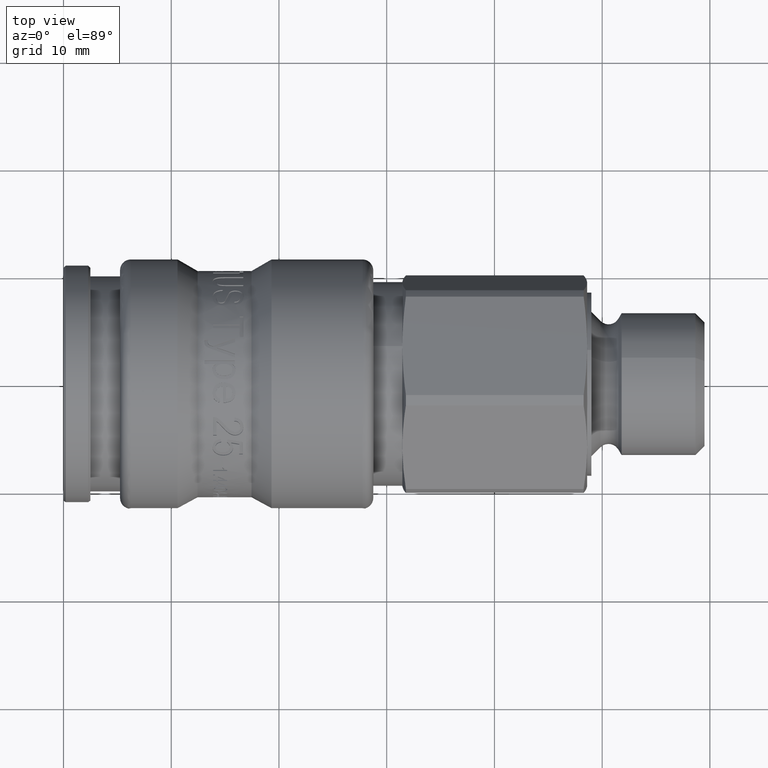
[diagram: clean part render]
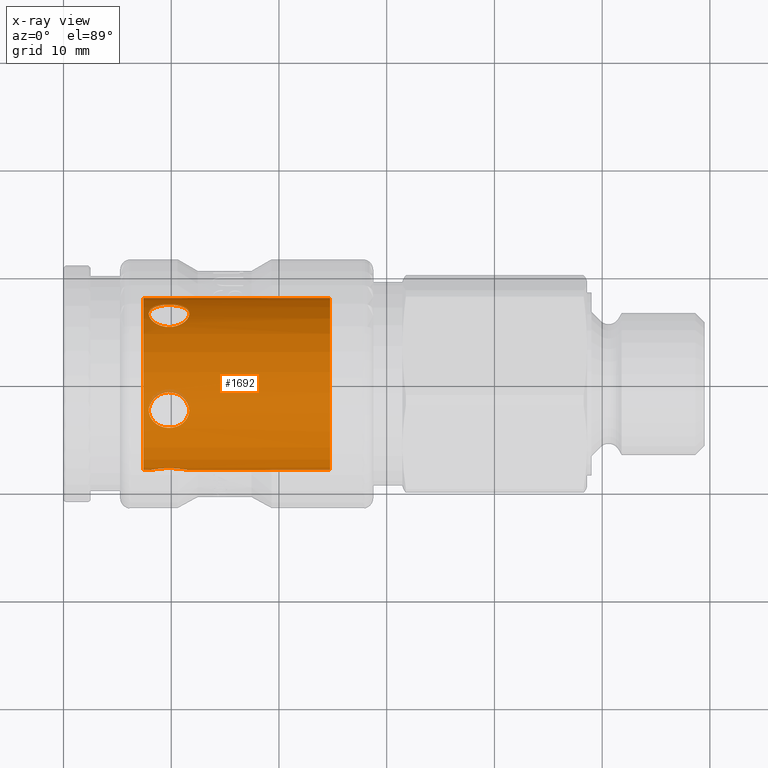
[diagram: x-ray — body ghosted, one internal face saturated and labeled with its STEP entity id]
A machine part, top view, then the same camera in x-ray: the body is ghosted and one INTERNAL B-rep face — a face not visible from any outside direction — is saturated and labeled: STEP entity #1692.
In plain terms, the highlighted cylindrical surface (bore or boss wall) has radius 8 mm, axis along (1, 0, 0).
Its self-contained STEP definition (entity closure, byte-faithful):
#1037=CARTESIAN_POINT('',(24.750000000000018,2.862820536596101,7.470224800850614));
#1038=VERTEX_POINT('',#1037);
#1039=CARTESIAN_POINT('',(24.750000000000021,0.0,0.0));
#1040=DIRECTION('',(-1.0,0.0,0.0));
#1041=DIRECTION('',(0.0,1.0,0.0));
#1042=AXIS2_PLACEMENT_3D('',#1039,#1040,#1041);
#1043=CIRCLE('',#1042,8.0);
#1044=EDGE_CURVE('',#1038,#1038,#1043,.T.);
#1242=CARTESIAN_POINT('',(7.907707855833962,-2.472135954999579,7.608452130361231));
#1243=VERTEX_POINT('',#1242);
#1244=CARTESIAN_POINT('',(11.692292144166041,-2.472135954999579,7.608452130361231));
#1245=VERTEX_POINT('',#1244);
#1246=CARTESIAN_POINT('',(7.907707855833962,-2.472135954999578,7.608452130361229));
#1247=CARTESIAN_POINT('',(7.907707855833962,-2.246160683258776,7.6818759470114));
#1248=CARTESIAN_POINT('',(7.956174254062871,-2.002371410237687,7.748836300970494));
#1249=CARTESIAN_POINT('',(8.151299058588551,-1.549396835035074,7.851963112260614));
#1250=CARTESIAN_POINT('',(8.297897496624692,-1.340317419983883,7.888707288715832));
#1251=CARTESIAN_POINT('',(8.633969101640778,-1.008762223908913,7.937910321553241));
#1252=CARTESIAN_POINT('',(8.84597209310374,-0.863704920792865,7.95383228236084));
#1253=CARTESIAN_POINT('',(9.310429020530567,-0.670339928805082,7.972457505264603));
#1254=CARTESIAN_POINT('',(9.562953105394298,-0.622259272924391,7.975762872431679));
#1255=CARTESIAN_POINT('',(10.037046894605703,-0.622259272924391,7.975762872431679));
#1256=CARTESIAN_POINT('',(10.289570979469435,-0.670339928805081,7.972457505264603));
#1257=CARTESIAN_POINT('',(10.754027906896262,-0.863704920792864,7.95383228236084));
#1258=CARTESIAN_POINT('',(10.966030898359222,-1.008762223908913,7.937910321553241));
#1259=CARTESIAN_POINT('',(11.302102503375311,-1.340317419983883,7.888707288715832));
#1260=CARTESIAN_POINT('',(11.448700941411454,-1.549396835035074,7.851963112260614));
#1261=CARTESIAN_POINT('',(11.643825745937136,-2.002371410237687,7.748836300970494));
#1262=CARTESIAN_POINT('',(11.692292144166043,-2.246160683258775,7.6818759470114));
#1263=CARTESIAN_POINT('',(11.692292144166043,-2.472135954999577,7.608452130361229));
#1264=B_SPLINE_CURVE_WITH_KNOTS('',3,(#1246,#1247,#1248,#1249,#1250,#1251,#1252,#1253,#1254,#1255,#1256,#1257,#1258,#1259,#1260,#1261,#1262,#1263),.UNSPECIFIED.,.F.,.U.,(4,2,2,2,2,2,2,2,4),(0.28479081387188,0.35607215242611,0.427353490980339,0.49846755936205,0.569581627743761,0.640695696125472,0.711809764507182,0.783091103061412,0.854372441615641),.UNSPECIFIED.);
#1265=EDGE_CURVE('',#1243,#1245,#1264,.T.);
#1267=CARTESIAN_POINT('',(11.692292144166043,-2.472135954999578,7.608452130361229));
#1268=CARTESIAN_POINT('',(11.692292144166043,-2.698111226740381,7.535028313711059));
#1269=CARTESIAN_POINT('',(11.643825745937136,-2.934699200206195,7.445904638664431));
#1270=CARTESIAN_POINT('',(11.448700941411454,-3.361779748357164,7.263084206606294));
#1271=CARTESIAN_POINT('',(11.302102503375311,-3.552526233335558,7.169917073077848));
#1272=CARTESIAN_POINT('',(10.966030898359222,-3.849680838603419,7.014839908244293));
#1273=CARTESIAN_POINT('',(10.754027906896262,-3.976393355732786,6.942458501612481));
#1274=CARTESIAN_POINT('',(10.289570979469438,-4.14377655171157,6.843869532865576));
#1275=CARTESIAN_POINT('',(10.037046894605705,-4.184617465493961,6.818282530629171));
#1276=CARTESIAN_POINT('',(9.800000000000003,-4.184617465493961,6.818282530629171));
#1277=CARTESIAN_POINT('',(9.562953105394298,-4.184617465493961,6.818282530629171));
#1278=CARTESIAN_POINT('',(9.310429020530568,-4.143776551711569,6.843869532865576));
#1279=CARTESIAN_POINT('',(8.845972093103745,-3.976393355732786,6.942458501612481));
#1280=CARTESIAN_POINT('',(8.63396910164078,-3.849680838603419,7.014839908244293));
#1281=CARTESIAN_POINT('',(8.297897496624692,-3.552526233335558,7.169917073077848));
#1282=CARTESIAN_POINT('',(8.151299058588551,-3.361779748357163,7.263084206606293));
#1283=CARTESIAN_POINT('',(7.956174254062871,-2.934699200206195,7.44590463866443));
#1284=CARTESIAN_POINT('',(7.907707855833963,-2.69811122674038,7.535028313711059));
#1285=CARTESIAN_POINT('',(7.907707855833963,-2.472135954999578,7.608452130361229));
#1286=B_SPLINE_CURVE_WITH_KNOTS('',3,(#1267,#1268,#1269,#1270,#1271,#1272,#1273,#1274,#1275,#1276,#1277,#1278,#1279,#1280,#1281,#1282,#1283,#1284,#1285),.UNSPECIFIED.,.F.,.U.,(4,2,2,2,3,2,2,2,4),(0.854372441615641,0.92565378016987,0.996935118724099,1.06804918710581,1.139163255487521,1.210277323869232,1.281391392250943,1.352672730805172,1.423954069359401),.UNSPECIFIED.);
#1287=EDGE_CURVE('',#1245,#1243,#1286,.T.);
#1300=CARTESIAN_POINT('',(7.907707855833962,6.472135954999581,4.702282018339786));
#1301=VERTEX_POINT('',#1300);
#1302=CARTESIAN_POINT('',(11.692292144166041,6.472135954999581,4.702282018339786));
#1303=VERTEX_POINT('',#1302);
#1304=CARTESIAN_POINT('',(7.907707855833963,6.472135954999581,4.702282018339784));
#1305=CARTESIAN_POINT('',(7.907707855833963,6.611796353552391,4.510055970765899));
#1306=CARTESIAN_POINT('',(7.95617425406287,6.750814462928446,4.298890481379057));
#1307=CARTESIAN_POINT('',(8.151299058588551,6.988870730568037,3.899953997180928));
#1308=CARTESIAN_POINT('',(8.297897496624692,7.088425611446461,3.712462232042288));
#1309=CARTESIAN_POINT('',(8.633969101640778,7.237676666608445,3.412339075625218));
#1310=CARTESIAN_POINT('',(8.845972093103741,7.297644523007767,3.279301538733819));
#1311=CARTESIAN_POINT('',(9.310429020530567,7.375111231259242,3.101156013481762));
#1312=CARTESIAN_POINT('',(9.562953105394298,7.393112562010064,3.056450007025963));
#1313=CARTESIAN_POINT('',(10.037046894605703,7.393112562010064,3.056450007025963));
#1314=CARTESIAN_POINT('',(10.289570979469435,7.375111231259242,3.101156013481761));
#1315=CARTESIAN_POINT('',(10.754027906896262,7.297644523007768,3.279301538733818));
#1316=CARTESIAN_POINT('',(10.966030898359222,7.237676666608447,3.412339075625218));
#1317=CARTESIAN_POINT('',(11.302102503375311,7.088425611446461,3.712462232042287));
#1318=CARTESIAN_POINT('',(11.448700941411454,6.988870730568037,3.899953997180928));
#1319=CARTESIAN_POINT('',(11.643825745937136,6.750814462928448,4.298890481379056));
#1320=CARTESIAN_POINT('',(11.692292144166043,6.611796353552391,4.510055970765898));
#1321=CARTESIAN_POINT('',(11.692292144166043,6.472135954999581,4.702282018339784));
#1322=B_SPLINE_CURVE_WITH_KNOTS('',3,(#1304,#1305,#1306,#1307,#1308,#1309,#1310,#1311,#1312,#1313,#1314,#1315,#1316,#1317,#1318,#1319,#1320,#1321),.UNSPECIFIED.,.F.,.U.,(4,2,2,2,2,2,2,2,4),(0.28479081387188,0.35607215242611,0.427353490980339,0.49846755936205,0.569581627743761,0.640695696125472,0.711809764507182,0.783091103061412,0.854372441615641),.UNSPECIFIED.);
#1323=EDGE_CURVE('',#1301,#1303,#1322,.T.);
#1325=CARTESIAN_POINT('',(11.692292144166043,6.472135954999581,4.702282018339785));
#1326=CARTESIAN_POINT('',(11.692292144166043,6.33247555644677,4.894508065913671));
#1327=CARTESIAN_POINT('',(11.643825745937136,6.174604200071836,5.091975869564839));
#1328=CARTESIAN_POINT('',(11.448700941411454,5.868756489505431,5.441658987441789));
#1329=CARTESIAN_POINT('',(11.302102503375311,5.721205374583054,5.594279447363398));
#1330=CARTESIAN_POINT('',(10.966030898359225,5.481892403454978,5.828968791677458));
#1331=CARTESIAN_POINT('',(10.75402790689626,5.373897273826181,5.927112472063509));
#1332=CARTESIAN_POINT('',(10.289570979469438,5.228409340534381,6.055837684516745));
#1333=CARTESIAN_POINT('',(10.037046894605705,5.191454118900428,6.086772883174778));
#1334=CARTESIAN_POINT('',(9.800000000000003,5.191454118900428,6.086772883174778));
#1335=CARTESIAN_POINT('',(9.562953105394298,5.191454118900428,6.086772883174778));
#1336=CARTESIAN_POINT('',(9.310429020530565,5.228409340534381,6.055837684516745));
#1337=CARTESIAN_POINT('',(8.84597209310374,5.373897273826182,5.927112472063508));
#1338=CARTESIAN_POINT('',(8.633969101640776,5.481892403454976,5.828968791677458));
#1339=CARTESIAN_POINT('',(8.297897496624691,5.721205374583054,5.594279447363398));
#1340=CARTESIAN_POINT('',(8.151299058588551,5.868756489505432,5.441658987441789));
#1341=CARTESIAN_POINT('',(7.956174254062871,6.174604200071837,5.091975869564839));
#1342=CARTESIAN_POINT('',(7.907707855833963,6.33247555644677,4.89450806591367));
#1343=CARTESIAN_POINT('',(7.907707855833963,6.472135954999581,4.702282018339784));
#1344=B_SPLINE_CURVE_WITH_KNOTS('',3,(#1325,#1326,#1327,#1328,#1329,#1330,#1331,#1332,#1333,#1334,#1335,#1336,#1337,#1338,#1339,#1340,#1341,#1342,#1343),.UNSPECIFIED.,.F.,.U.,(4,2,2,2,3,2,2,2,4),(0.854372441615641,0.92565378016987,0.996935118724099,1.06804918710581,1.139163255487521,1.210277323869232,1.281391392250943,1.352672730805172,1.423954069359402),.UNSPECIFIED.);
#1345=EDGE_CURVE('',#1303,#1301,#1344,.T.);
#1358=CARTESIAN_POINT('',(7.907707855833962,6.472135954999581,-4.702282018339787));
#1359=VERTEX_POINT('',#1358);
#1360=CARTESIAN_POINT('',(11.692292144166041,6.472135954999581,-4.702282018339787));
#1361=VERTEX_POINT('',#1360);
#1362=CARTESIAN_POINT('',(7.907707855833963,6.472135954999581,-4.702282018339786));
#1363=CARTESIAN_POINT('',(7.907707855833963,6.332475556446772,-4.894508065913671));
#1364=CARTESIAN_POINT('',(7.95617425406287,6.174604200071833,-5.091975869564839));
#1365=CARTESIAN_POINT('',(8.151299058588551,5.868756489505429,-5.44165898744179));
#1366=CARTESIAN_POINT('',(8.297897496624692,5.721205374583052,-5.594279447363398));
#1367=CARTESIAN_POINT('',(8.633969101640778,5.481892403454975,-5.828968791677458));
#1368=CARTESIAN_POINT('',(8.84597209310374,5.373897273826179,-5.92711247206351));
#1369=CARTESIAN_POINT('',(9.310429020530567,5.22840934053438,-6.055837684516749));
#1370=CARTESIAN_POINT('',(9.562953105394298,5.191454118900428,-6.086772883174779));
#1371=CARTESIAN_POINT('',(10.037046894605703,5.191454118900428,-6.086772883174779));
#1372=CARTESIAN_POINT('',(10.289570979469435,5.228409340534379,-6.055837684516749));
#1373=CARTESIAN_POINT('',(10.754027906896262,5.373897273826178,-5.92711247206351));
#1374=CARTESIAN_POINT('',(10.966030898359227,5.481892403454975,-5.828968791677459));
#1375=CARTESIAN_POINT('',(11.302102503375311,5.721205374583052,-5.5942794473634));
#1376=CARTESIAN_POINT('',(11.448700941411454,5.86875648950543,-5.44165898744179));
#1377=CARTESIAN_POINT('',(11.643825745937136,6.174604200071835,-5.091975869564841));
#1378=CARTESIAN_POINT('',(11.692292144166043,6.33247555644677,-4.894508065913671));
#1379=CARTESIAN_POINT('',(11.692292144166043,6.47213595499958,-4.702282018339786));
#1380=B_SPLINE_CURVE_WITH_KNOTS('',3,(#1362,#1363,#1364,#1365,#1366,#1367,#1368,#1369,#1370,#1371,#1372,#1373,#1374,#1375,#1376,#1377,#1378,#1379),.UNSPECIFIED.,.F.,.U.,(4,2,2,2,2,2,2,2,4),(0.28479081387188,0.356072152426109,0.427353490980339,0.49846755936205,0.569581627743761,0.640695696125472,0.711809764507182,0.783091103061412,0.854372441615641),.UNSPECIFIED.);
#1381=EDGE_CURVE('',#1359,#1361,#1380,.T.);
#1383=CARTESIAN_POINT('',(11.692292144166043,6.47213595499958,-4.702282018339786));
#1384=CARTESIAN_POINT('',(11.692292144166043,6.611796353552388,-4.510055970765901));
#1385=CARTESIAN_POINT('',(11.643825745937136,6.750814462928446,-4.298890481379058));
#1386=CARTESIAN_POINT('',(11.448700941411454,6.988870730568037,-3.899953997180929));
#1387=CARTESIAN_POINT('',(11.302102503375309,7.088425611446461,-3.71246223204229));
#1388=CARTESIAN_POINT('',(10.966030898359222,7.237676666608445,-3.41233907562522));
#1389=CARTESIAN_POINT('',(10.754027906896262,7.297644523007768,-3.279301538733819));
#1390=CARTESIAN_POINT('',(10.289570979469438,7.375111231259242,-3.101156013481763));
#1391=CARTESIAN_POINT('',(10.037046894605705,7.393112562010065,-3.056450007025965));
#1392=CARTESIAN_POINT('',(9.800000000000003,7.393112562010064,-3.056450007025964));
#1393=CARTESIAN_POINT('',(9.562953105394298,7.393112562010064,-3.056450007025964));
#1394=CARTESIAN_POINT('',(9.310429020530567,7.375111231259242,-3.101156013481765));
#1395=CARTESIAN_POINT('',(8.845972093103743,7.297644523007767,-3.279301538733821));
#1396=CARTESIAN_POINT('',(8.63396910164078,7.237676666608445,-3.412339075625219));
#1397=CARTESIAN_POINT('',(8.297897496624692,7.088425611446461,-3.71246223204229));
#1398=CARTESIAN_POINT('',(8.151299058588551,6.988870730568037,-3.899953997180929));
#1399=CARTESIAN_POINT('',(7.956174254062871,6.750814462928446,-4.298890481379058));
#1400=CARTESIAN_POINT('',(7.907707855833962,6.611796353552387,-4.510055970765901));
#1401=CARTESIAN_POINT('',(7.907707855833962,6.472135954999578,-4.702282018339786));
#1402=B_SPLINE_CURVE_WITH_KNOTS('',3,(#1383,#1384,#1385,#1386,#1387,#1388,#1389,#1390,#1391,#1392,#1393,#1394,#1395,#1396,#1397,#1398,#1399,#1400,#1401),.UNSPECIFIED.,.F.,.U.,(4,2,2,2,3,2,2,2,4),(0.854372441615641,0.92565378016987,0.996935118724099,1.06804918710581,1.139163255487521,1.210277323869232,1.281391392250943,1.352672730805172,1.423954069359401),.UNSPECIFIED.);
#1403=EDGE_CURVE('',#1361,#1359,#1402,.T.);
#1416=CARTESIAN_POINT('',(7.907707855833962,-2.472135954999581,-7.608452130361229));
#1417=VERTEX_POINT('',#1416);
#1418=CARTESIAN_POINT('',(11.692292144166041,-2.472135954999581,-7.608452130361229));
#1419=VERTEX_POINT('',#1418);
#1420=CARTESIAN_POINT('',(7.907707855833963,-2.47213595499958,-7.608452130361229));
#1421=CARTESIAN_POINT('',(7.907707855833963,-2.698111226740382,-7.535028313711059));
#1422=CARTESIAN_POINT('',(7.956174254062871,-2.934699200206196,-7.445904638664429));
#1423=CARTESIAN_POINT('',(8.151299058588551,-3.361779748357164,-7.263084206606292));
#1424=CARTESIAN_POINT('',(8.297897496624692,-3.552526233335559,-7.169917073077848));
#1425=CARTESIAN_POINT('',(8.633969101640778,-3.84968083860342,-7.014839908244293));
#1426=CARTESIAN_POINT('',(8.845972093103741,-3.976393355732786,-6.942458501612481));
#1427=CARTESIAN_POINT('',(9.310429020530567,-4.143776551711571,-6.843869532865575));
#1428=CARTESIAN_POINT('',(9.562953105394298,-4.184617465493962,-6.818282530629169));
#1429=CARTESIAN_POINT('',(10.037046894605703,-4.184617465493963,-6.818282530629169));
#1430=CARTESIAN_POINT('',(10.289570979469435,-4.143776551711571,-6.843869532865574));
#1431=CARTESIAN_POINT('',(10.754027906896262,-3.976393355732788,-6.942458501612478));
#1432=CARTESIAN_POINT('',(10.966030898359222,-3.84968083860342,-7.014839908244293));
#1433=CARTESIAN_POINT('',(11.302102503375311,-3.55252623333556,-7.169917073077848));
#1434=CARTESIAN_POINT('',(11.448700941411454,-3.361779748357164,-7.263084206606292));
#1435=CARTESIAN_POINT('',(11.643825745937136,-2.934699200206196,-7.445904638664429));
#1436=CARTESIAN_POINT('',(11.692292144166043,-2.698111226740382,-7.535028313711059));
#1437=CARTESIAN_POINT('',(11.692292144166043,-2.47213595499958,-7.608452130361229));
#1438=B_SPLINE_CURVE_WITH_KNOTS('',3,(#1420,#1421,#1422,#1423,#1424,#1425,#1426,#1427,#1428,#1429,#1430,#1431,#1432,#1433,#1434,#1435,#1436,#1437),.UNSPECIFIED.,.F.,.U.,(4,2,2,2,2,2,2,2,4),(0.28479081387188,0.35607215242611,0.427353490980339,0.49846755936205,0.569581627743761,0.640695696125471,0.711809764507182,0.783091103061411,0.854372441615641),.UNSPECIFIED.);
#1439=EDGE_CURVE('',#1417,#1419,#1438,.T.);
#1441=CARTESIAN_POINT('',(11.692292144166043,-2.47213595499958,-7.608452130361229));
#1442=CARTESIAN_POINT('',(11.692292144166043,-2.246160683258778,-7.6818759470114));
#1443=CARTESIAN_POINT('',(11.643825745937136,-2.002371410237689,-7.748836300970493));
#1444=CARTESIAN_POINT('',(11.448700941411454,-1.549396835035076,-7.851963112260613));
#1445=CARTESIAN_POINT('',(11.302102503375311,-1.340317419983885,-7.888707288715832));
#1446=CARTESIAN_POINT('',(10.966030898359227,-1.008762223908915,-7.937910321553241));
#1447=CARTESIAN_POINT('',(10.754027906896262,-0.863704920792866,-7.95383228236084));
#1448=CARTESIAN_POINT('',(10.289570979469435,-0.670339928805083,-7.972457505264603));
#1449=CARTESIAN_POINT('',(10.037046894605703,-0.622259272924394,-7.97576287243168));
#1450=CARTESIAN_POINT('',(9.800000000000003,-0.622259272924394,-7.97576287243168));
#1451=CARTESIAN_POINT('',(9.562953105394298,-0.622259272924394,-7.97576287243168));
#1452=CARTESIAN_POINT('',(9.310429020530567,-0.670339928805084,-7.972457505264604));
#1453=CARTESIAN_POINT('',(8.845972093103743,-0.863704920792867,-7.953832282360841));
#1454=CARTESIAN_POINT('',(8.63396910164078,-1.008762223908915,-7.937910321553241));
#1455=CARTESIAN_POINT('',(8.297897496624692,-1.340317419983886,-7.888707288715832));
#1456=CARTESIAN_POINT('',(8.151299058588551,-1.549396835035076,-7.851963112260613));
#1457=CARTESIAN_POINT('',(7.956174254062871,-2.002371410237689,-7.748836300970493));
#1458=CARTESIAN_POINT('',(7.907707855833962,-2.246160683258778,-7.6818759470114));
#1459=CARTESIAN_POINT('',(7.907707855833962,-2.47213595499958,-7.608452130361229));
#1460=B_SPLINE_CURVE_WITH_KNOTS('',3,(#1441,#1442,#1443,#1444,#1445,#1446,#1447,#1448,#1449,#1450,#1451,#1452,#1453,#1454,#1455,#1456,#1457,#1458,#1459),.UNSPECIFIED.,.F.,.U.,(4,2,2,2,3,2,2,2,4),(0.854372441615641,0.92565378016987,0.996935118724099,1.06804918710581,1.139163255487521,1.210277323869232,1.281391392250943,1.352672730805172,1.423954069359401),.UNSPECIFIED.);
#1461=EDGE_CURVE('',#1419,#1417,#1460,.T.);
#1474=CARTESIAN_POINT('',(7.907707855833962,-8.0,0.0));
#1475=VERTEX_POINT('',#1474);
#1476=CARTESIAN_POINT('',(11.692292144166041,-8.0,0.0));
#1477=VERTEX_POINT('',#1476);
#1478=CARTESIAN_POINT('',(7.907707855833962,-8.0,6.938894E-017));
#1479=CARTESIAN_POINT('',(7.907707855833962,-8.0,0.237604461847431));
#1480=CARTESIAN_POINT('',(7.956174254062871,-7.988348052556398,0.490153725879717));
#1481=CARTESIAN_POINT('',(8.151299058588551,-7.946450636681228,0.952826084606536));
#1482=CARTESIAN_POINT('',(8.297897496624691,-7.916787332710069,1.163026999683125));
#1483=CARTESIAN_POINT('',(8.633969101640776,-7.861126007551087,1.493559302743291));
#1484=CARTESIAN_POINT('',(8.845972093103738,-7.831443520308294,1.636437152581329));
#1485=CARTESIAN_POINT('',(9.310429020530563,-7.789404091276968,1.826093698635956));
#1486=CARTESIAN_POINT('',(9.562953105394298,-7.777689942492136,1.872842534346306));
#1487=CARTESIAN_POINT('',(10.037046894605705,-7.777689942492136,1.872842534346306));
#1488=CARTESIAN_POINT('',(10.289570979469438,-7.789404091276967,1.826093698635955));
#1489=CARTESIAN_POINT('',(10.75402790689626,-7.831443520308294,1.636437152581331));
#1490=CARTESIAN_POINT('',(10.966030898359225,-7.861126007551087,1.493559302743291));
#1491=CARTESIAN_POINT('',(11.302102503375311,-7.916787332710069,1.163026999683126));
#1492=CARTESIAN_POINT('',(11.448700941411454,-7.946450636681227,0.952826084606537));
#1493=CARTESIAN_POINT('',(11.643825745937136,-7.988348052556397,0.490153725879718));
#1494=CARTESIAN_POINT('',(11.692292144166043,-8.0,0.237604461847431));
#1495=CARTESIAN_POINT('',(11.692292144166043,-8.0,2.775558E-016));
#1496=B_SPLINE_CURVE_WITH_KNOTS('',3,(#1478,#1479,#1480,#1481,#1482,#1483,#1484,#1485,#1486,#1487,#1488,#1489,#1490,#1491,#1492,#1493,#1494,#1495),.UNSPECIFIED.,.F.,.U.,(4,2,2,2,2,2,2,2,4),(0.28479081387188,0.35607215242611,0.427353490980339,0.49846755936205,0.569581627743761,0.640695696125472,0.711809764507183,0.783091103061412,0.854372441615641),.UNSPECIFIED.);
#1497=EDGE_CURVE('',#1475,#1477,#1496,.T.);
#1499=CARTESIAN_POINT('',(11.692292144166043,-8.0,-6.938894E-017));
#1500=CARTESIAN_POINT('',(11.692292144166043,-8.0,-0.237604461847431));
#1501=CARTESIAN_POINT('',(11.643825745937136,-7.988348052556398,-0.490153725879718));
#1502=CARTESIAN_POINT('',(11.448700941411454,-7.946450636681228,-0.952826084606537));
#1503=CARTESIAN_POINT('',(11.302102503375311,-7.916787332710069,-1.163026999683125));
#1504=CARTESIAN_POINT('',(10.966030898359227,-7.861126007551087,-1.493559302743291));
#1505=CARTESIAN_POINT('',(10.754027906896262,-7.831443520308294,-1.63643715258133));
#1506=CARTESIAN_POINT('',(10.289570979469435,-7.789404091276967,-1.826093698635956));
#1507=CARTESIAN_POINT('',(10.037046894605703,-7.777689942492136,-1.872842534346306));
#1508=CARTESIAN_POINT('',(9.800000000000003,-7.777689942492136,-1.872842534346306));
#1509=CARTESIAN_POINT('',(9.562953105394298,-7.777689942492136,-1.872842534346306));
#1510=CARTESIAN_POINT('',(9.310429020530565,-7.789404091276968,-1.826093698635955));
#1511=CARTESIAN_POINT('',(8.84597209310374,-7.831443520308294,-1.636437152581329));
#1512=CARTESIAN_POINT('',(8.633969101640776,-7.861126007551087,-1.493559302743291));
#1513=CARTESIAN_POINT('',(8.297897496624691,-7.916787332710069,-1.163026999683125));
#1514=CARTESIAN_POINT('',(8.151299058588551,-7.946450636681228,-0.952826084606536));
#1515=CARTESIAN_POINT('',(7.956174254062871,-7.988348052556398,-0.490153725879717));
#1516=CARTESIAN_POINT('',(7.907707855833963,-8.0,-0.237604461847431));
#1517=CARTESIAN_POINT('',(7.907707855833963,-8.0,0.0));
#1518=B_SPLINE_CURVE_WITH_KNOTS('',3,(#1499,#1500,#1501,#1502,#1503,#1504,#1505,#1506,#1507,#1508,#1509,#1510,#1511,#1512,#1513,#1514,#1515,#1516,#1517),.UNSPECIFIED.,.F.,.U.,(4,2,2,2,3,2,2,2,4),(0.854372441615641,0.92565378016987,0.996935118724099,1.06804918710581,1.139163255487521,1.210277323869232,1.281391392250944,1.352672730805173,1.423954069359402),.UNSPECIFIED.);
#1519=EDGE_CURVE('',#1477,#1475,#1518,.T.);
#1646=CARTESIAN_POINT('',(7.399999999999997,8.0,0.0));
#1647=VERTEX_POINT('',#1646);
#1648=CARTESIAN_POINT('',(7.399999999999997,0.0,0.0));
#1649=DIRECTION('',(1.0,0.0,0.0));
#1650=DIRECTION('',(0.0,1.0,0.0));
#1651=AXIS2_PLACEMENT_3D('',#1648,#1649,#1650);
#1652=CIRCLE('',#1651,8.0);
#1653=EDGE_CURVE('',#1647,#1647,#1652,.T.);
#1661=CARTESIAN_POINT('',(18.474999999999998,0.0,0.0));
#1662=DIRECTION('',(1.0,0.0,0.0));
#1663=DIRECTION('',(0.0,1.0,0.0));
#1664=AXIS2_PLACEMENT_3D('',#1661,#1662,#1663);
#1665=CYLINDRICAL_SURFACE('',#1664,8.0);
#1666=ORIENTED_EDGE('',*,*,#1044,.T.);
#1667=EDGE_LOOP('',(#1666));
#1668=FACE_OUTER_BOUND('',#1667,.T.);
#1669=ORIENTED_EDGE('',*,*,#1265,.T.);
#1670=ORIENTED_EDGE('',*,*,#1287,.T.);
#1671=EDGE_LOOP('',(#1669,#1670));
#1672=FACE_BOUND('',#1671,.T.);
#1673=ORIENTED_EDGE('',*,*,#1323,.T.);
#1674=ORIENTED_EDGE('',*,*,#1345,.T.);
#1675=EDGE_LOOP('',(#1673,#1674));
#1676=FACE_BOUND('',#1675,.T.);
#1677=ORIENTED_EDGE('',*,*,#1381,.T.);
#1678=ORIENTED_EDGE('',*,*,#1403,.T.);
#1679=EDGE_LOOP('',(#1677,#1678));
#1680=FACE_BOUND('',#1679,.T.);
#1681=ORIENTED_EDGE('',*,*,#1439,.T.);
#1682=ORIENTED_EDGE('',*,*,#1461,.T.);
#1683=EDGE_LOOP('',(#1681,#1682));
#1684=FACE_BOUND('',#1683,.T.);
#1685=ORIENTED_EDGE('',*,*,#1497,.T.);
#1686=ORIENTED_EDGE('',*,*,#1519,.T.);
#1687=EDGE_LOOP('',(#1685,#1686));
#1688=FACE_BOUND('',#1687,.T.);
#1689=ORIENTED_EDGE('',*,*,#1653,.T.);
#1690=EDGE_LOOP('',(#1689));
#1691=FACE_BOUND('',#1690,.T.);
#1692=ADVANCED_FACE('',(#1668,#1672,#1676,#1680,#1684,#1688,#1691),#1665,.T.);